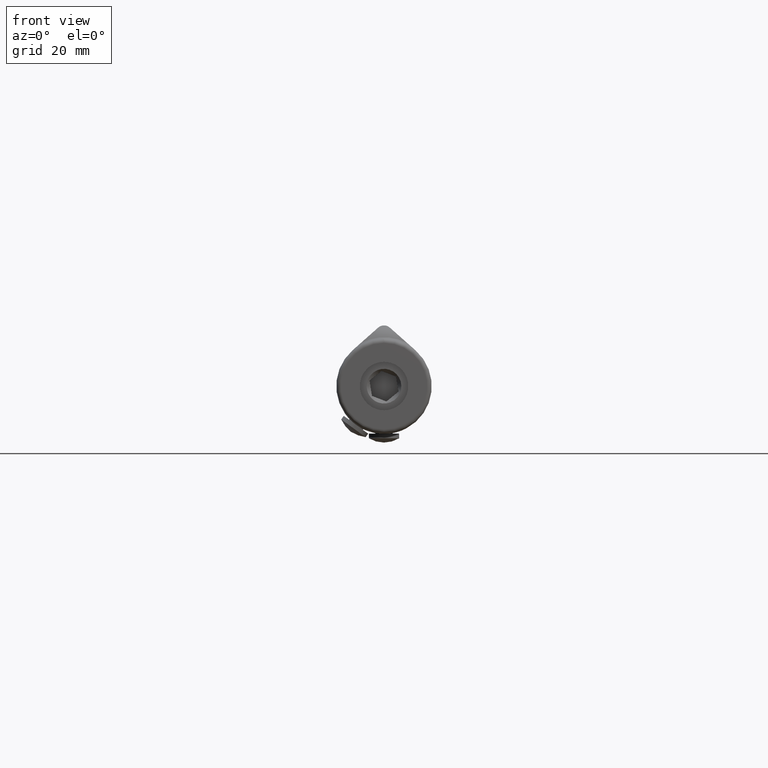
[diagram: clean part render]
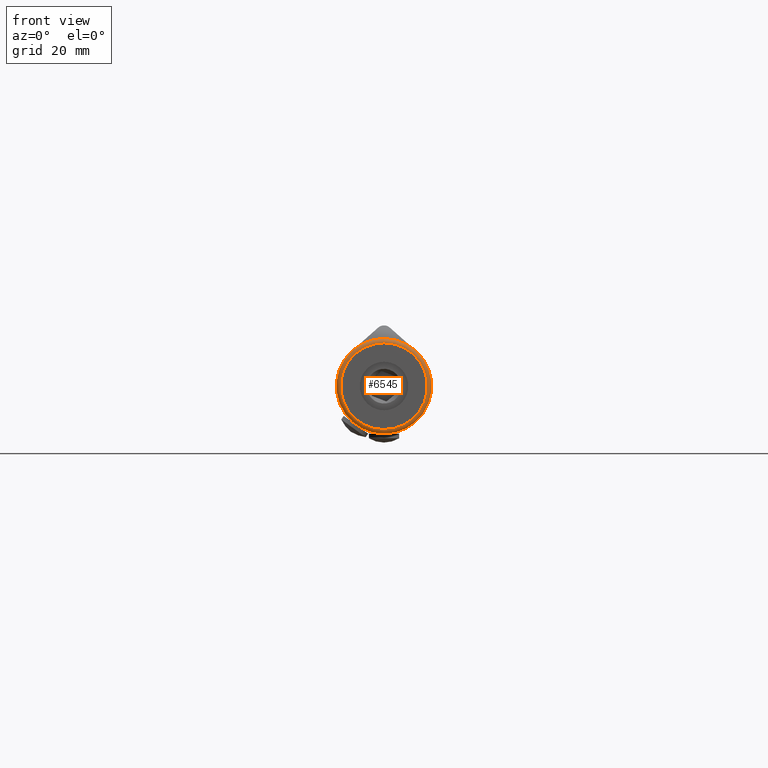
[diagram: same view with one face highlighted and labeled with its STEP entity id]
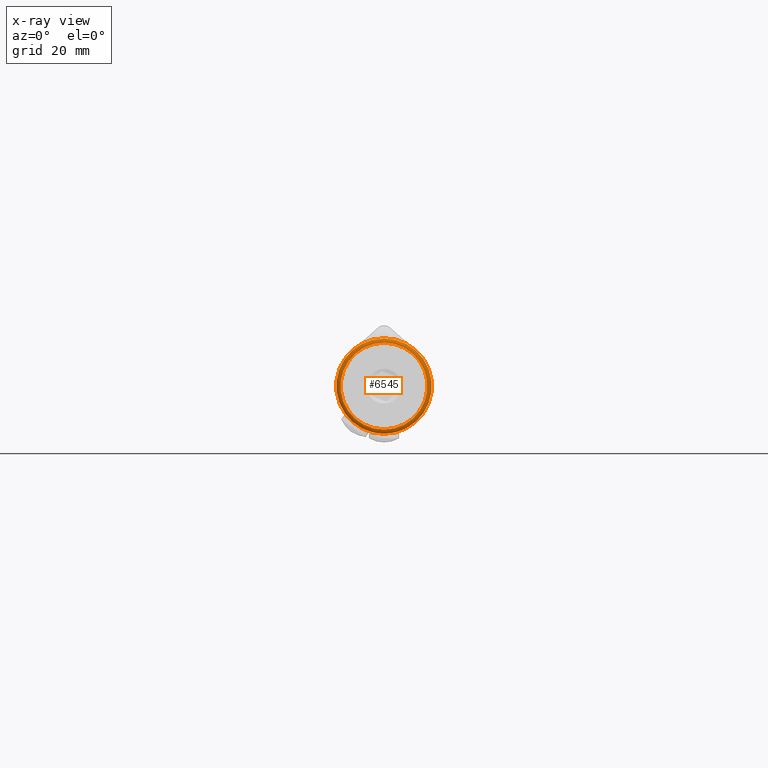
[diagram: x-ray of the same camera — body ghosted, the highlighted face saturated]
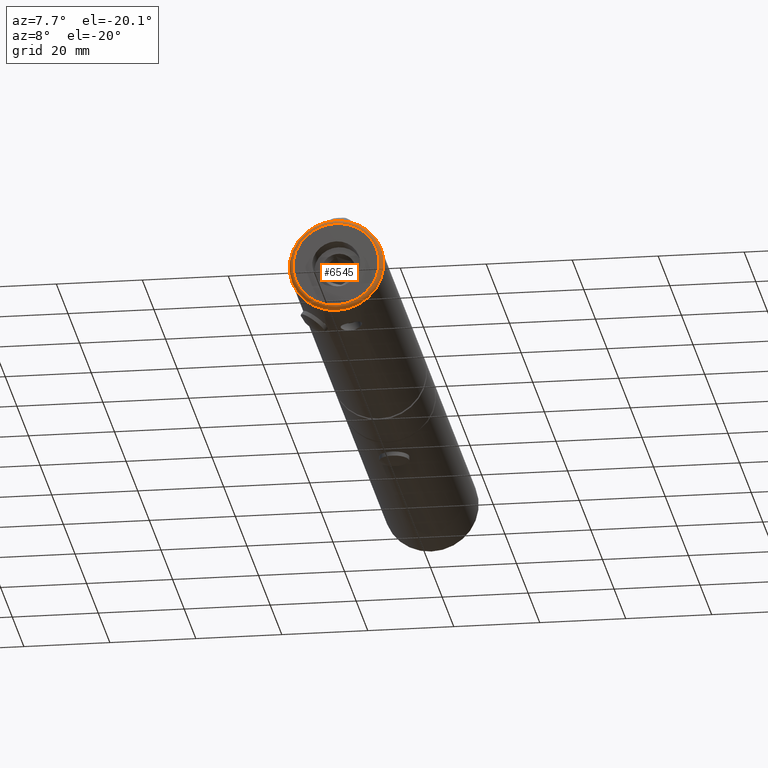
[diagram: same view with one face highlighted and labeled with its STEP entity id]
A machine part, front view. The second image highlights one B-rep face of the part: STEP entity #6545.
The next image is the same camera in x-ray: the body ghosted, the highlighted face saturated — about 0% of this face is hidden behind the body in this view.
A second angle (auxiliary view) of the same face is appended — the face is thin or edge-on in the first view.
In plain terms, the highlighted toroidal blend (fillet) surface has major radius 10 mm and minor (blend) radius 1 mm.
Its self-contained STEP definition (entity closure, byte-faithful):
#134 = ORIENTED_EDGE ( 'NONE', *, *, #14773, .F. ) ;
#3251 = DIRECTION ( 'NONE',  ( 0.000000000000000000, 0.000000000000000000, 1.000000000000000000 ) ) ;
#3659 = VERTEX_POINT ( 'NONE', #7412 ) ;
#3877 = DIRECTION ( 'NONE',  ( 0.000000000000000000, 0.000000000000000000, 1.000000000000000000 ) ) ;
#5702 = CARTESIAN_POINT ( 'NONE',  ( 0.000000000000000000, 36.50000000000000711, 0.000000000000000000 ) ) ;
#6545 = ADVANCED_FACE ( 'NONE', ( #15463, #11310 ), #14456, .T. ) ;
#6731 = VERTEX_POINT ( 'NONE', #12360 ) ;
#6924 = DIRECTION ( 'NONE',  ( -0.000000000000000000, -1.000000000000000000, -0.000000000000000000 ) ) ;
#7412 = CARTESIAN_POINT ( 'NONE',  ( 0.000000000000000000, 37.50000000000000711, 10.00000000000009237 ) ) ;
#9434 = CIRCLE ( 'NONE', #11661, 10.00000000000009237 ) ;
#10198 = DIRECTION ( 'NONE',  ( 0.000000000000000000, 1.000000000000000000, 0.000000000000000000 ) ) ;
#10569 = CIRCLE ( 'NONE', #15199, 11.00000000000009948 ) ;
#10839 = DIRECTION ( 'NONE',  ( 0.000000000000000000, 1.000000000000000000, 0.000000000000000000 ) ) ;
#11310 = FACE_OUTER_BOUND ( 'NONE', #14375, .T. ) ;
#11661 = AXIS2_PLACEMENT_3D ( 'NONE', #13887, #10198, #3877 ) ;
#11851 = EDGE_CURVE ( 'NONE', #3659, #3659, #9434, .T. ) ;
#12173 = CARTESIAN_POINT ( 'NONE',  ( 0.000000000000000000, 36.50000000000000711, 0.000000000000000000 ) ) ;
#12360 = CARTESIAN_POINT ( 'NONE',  ( 0.000000000000000000, 36.50000000000000711, 11.00000000000009948 ) ) ;
#13887 = CARTESIAN_POINT ( 'NONE',  ( 0.000000000000000000, 37.50000000000000711, 0.000000000000000000 ) ) ;
#14318 = ORIENTED_EDGE ( 'NONE', *, *, #11851, .F. ) ;
#14357 = AXIS2_PLACEMENT_3D ( 'NONE', #12173, #10839, #3251 ) ;
#14375 = EDGE_LOOP ( 'NONE', ( #14318 ) ) ;
#14456 = TOROIDAL_SURFACE ( 'NONE', #14357, 9.999999999999998224, 1.000000000000000000 ) ;
#14773 = EDGE_CURVE ( 'NONE', #6731, #6731, #10569, .T. ) ;
#15199 = AXIS2_PLACEMENT_3D ( 'NONE', #5702, #6924, #15800 ) ;
#15463 = FACE_OUTER_BOUND ( 'NONE', #16206, .T. ) ;
#15800 = DIRECTION ( 'NONE',  ( 0.000000000000000000, 0.000000000000000000, 1.000000000000000000 ) ) ;
#16206 = EDGE_LOOP ( 'NONE', ( #134 ) ) ;